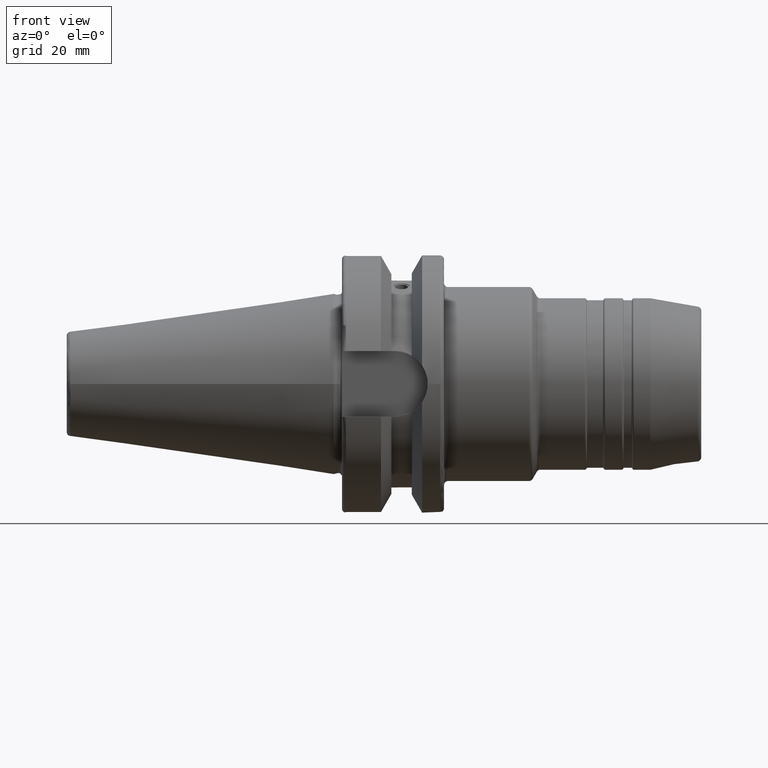
[diagram: clean part render]
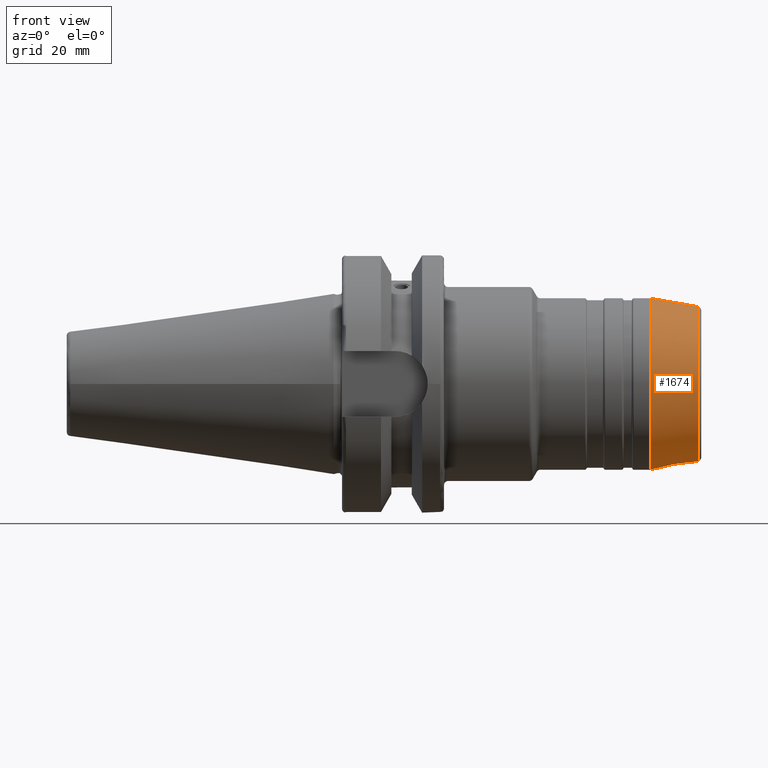
[diagram: same view with one face highlighted and labeled with its STEP entity id]
A machine part, front view. The second image highlights one B-rep face of the part: STEP entity #1674.
In plain terms, the highlighted conical surface has half-angle 10 deg.
Its self-contained STEP definition (entity closure, byte-faithful):
#122=CONICAL_SURFACE('',#1838,19.9,0.174532925199432);
#155=FACE_OUTER_BOUND('',#247,.T.);
#247=EDGE_LOOP('',(#1211,#1212,#1213,#1214,#1215,#1216));
#343=LINE('',#2835,#413);
#413=VECTOR('',#2195,19.9);
#522=CIRCLE('',#1835,20.9848077530122);
#524=CIRCLE('',#1837,20.9848077530122);
#525=CIRCLE('',#1839,18.9457081218349);
#526=CIRCLE('',#1840,18.9457081218349);
#672=VERTEX_POINT('',#2825);
#673=VERTEX_POINT('',#2826);
#674=VERTEX_POINT('',#2831);
#675=VERTEX_POINT('',#2832);
#880=EDGE_CURVE('',#672,#673,#522,.T.);
#882=EDGE_CURVE('',#673,#672,#524,.T.);
#883=EDGE_CURVE('',#674,#675,#525,.T.);
#884=EDGE_CURVE('',#675,#674,#526,.T.);
#885=EDGE_CURVE('',#675,#673,#343,.T.);
#1211=ORIENTED_EDGE('',*,*,#883,.F.);
#1212=ORIENTED_EDGE('',*,*,#884,.F.);
#1213=ORIENTED_EDGE('',*,*,#885,.T.);
#1214=ORIENTED_EDGE('',*,*,#880,.F.);
#1215=ORIENTED_EDGE('',*,*,#882,.F.);
#1216=ORIENTED_EDGE('',*,*,#885,.F.);
#1674=ADVANCED_FACE('',(#155),#122,.T.);
#1835=AXIS2_PLACEMENT_3D('',#2827,#2183,#2184);
#1837=AXIS2_PLACEMENT_3D('',#2829,#2187,#2188);
#1838=AXIS2_PLACEMENT_3D('',#2830,#2189,#2190);
#1839=AXIS2_PLACEMENT_3D('',#2833,#2191,#2192);
#1840=AXIS2_PLACEMENT_3D('',#2834,#2193,#2194);
#2183=DIRECTION('center_axis',(-1.,0.,0.));
#2184=DIRECTION('ref_axis',(0.,0.,1.));
#2187=DIRECTION('center_axis',(-1.,0.,0.));
#2188=DIRECTION('ref_axis',(0.,0.,1.));
#2189=DIRECTION('center_axis',(-1.,0.,0.));
#2190=DIRECTION('ref_axis',(0.,0.,-1.));
#2191=DIRECTION('center_axis',(1.,0.,0.));
#2192=DIRECTION('ref_axis',(0.,0.,1.));
#2193=DIRECTION('center_axis',(1.,0.,0.));
#2194=DIRECTION('ref_axis',(0.,0.,1.));
#2195=DIRECTION('',(-0.984807753012208,-2.12657684957576E-17,0.17364817766693));
#2825=CARTESIAN_POINT('',(77.609339510982,-5.13979552908979E-15,-20.9848077530122));
#2826=CARTESIAN_POINT('',(77.609339510982,-2.5698977645449E-15,20.9848077530122));
#2827=CARTESIAN_POINT('Origin',(77.609339510982,-2.5698977645449E-15,0.));
#2829=CARTESIAN_POINT('Origin',(77.609339510982,-2.5698977645449E-15,0.));
#2830=CARTESIAN_POINT('Origin',(83.7615899984205,0.,0.));
#2831=CARTESIAN_POINT('',(89.1736481776669,-4.93038065763132E-31,-18.9457081218349));
#2832=CARTESIAN_POINT('',(89.1736481776669,-2.32018008089852E-15,18.9457081218349));
#2833=CARTESIAN_POINT('Origin',(89.1736481776669,-2.32018008089852E-15,
0.));
#2834=CARTESIAN_POINT('Origin',(89.1736481776669,-2.32018008089852E-15,
0.));
#2835=CARTESIAN_POINT('',(83.7615899984205,-2.43704713030323E-15,19.9));